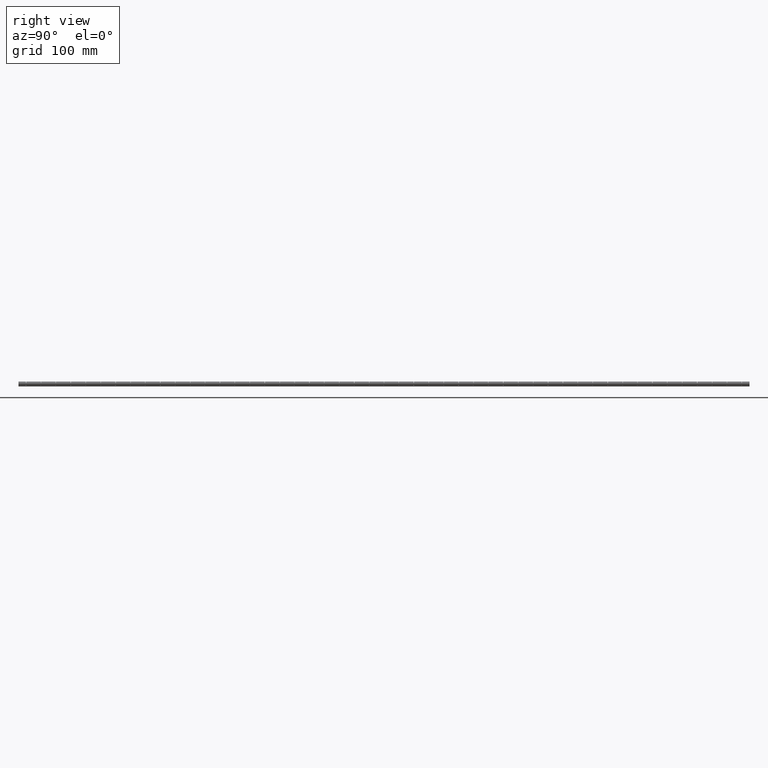
[diagram: clean part render]
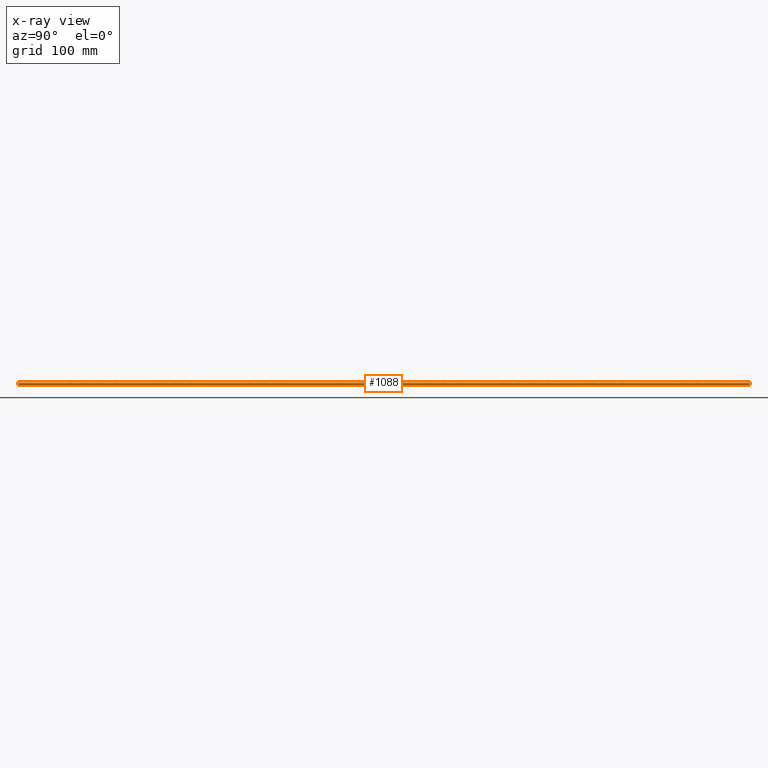
[diagram: x-ray — body ghosted, one internal face saturated and labeled with its STEP entity id]
A machine part, right view, then the same camera in x-ray: the body is ghosted and one INTERNAL B-rep face — a face not visible from any outside direction — is saturated and labeled: STEP entity #1088.
In plain terms, the highlighted cylindrical surface (edge-blend (fillet) strip) has radius 1.75 mm, axis along (0, -1, 0).
Its self-contained STEP definition (entity closure, byte-faithful):
#1016 = EDGE_CURVE ( 'NONE', #1090, #1017, #3806, .T. ) ;
#1017 = VERTEX_POINT ( 'NONE', #3802 ) ;
#1018 = ORIENTED_EDGE ( 'NONE', *, *, #1019, .T. ) ;
#1019 = EDGE_CURVE ( 'NONE', #1017, #1020, #3801, .T. ) ;
#1020 = VERTEX_POINT ( 'NONE', #3796 ) ;
#1021 = ORIENTED_EDGE ( 'NONE', *, *, #1073, .F. ) ;
#1073 = EDGE_CURVE ( 'NONE', #9745, #1020, #3856, .T. ) ;
#1088 = ADVANCED_FACE ( 'NONE', ( #3896 ), #3895, .T. ) ;
#1089 = EDGE_LOOP ( 'NONE', ( #1092, #10109, #1018, #1021 ) ) ;
#1090 = VERTEX_POINT ( 'NONE', #3890 ) ;
#1092 = ORIENTED_EDGE ( 'NONE', *, *, #1093, .F. ) ;
#1093 = EDGE_CURVE ( 'NONE', #1090, #9745, #3888, .T. ) ;
#3796 = CARTESIAN_POINT ( 'NONE',  ( 0.0000000000000000000, -500.0000000000000000, -1.749999999999999800 ) ) ;
#3797 = DIRECTION ( 'NONE',  ( 0.0000000000000000000, 0.0000000000000000000, 1.000000000000000000 ) ) ;
#3798 = DIRECTION ( 'NONE',  ( 0.0000000000000000000, 1.000000000000000000, 0.0000000000000000000 ) ) ;
#3799 = CARTESIAN_POINT ( 'NONE',  ( 0.0000000000000000000, -500.0000000000000000, 0.0000000000000000000 ) ) ;
#3800 = AXIS2_PLACEMENT_3D ( 'NONE', #3799, #3798, #3797 ) ;
#3801 = CIRCLE ( 'NONE', #3800, 1.749999999999999800 ) ;
#3802 = CARTESIAN_POINT ( 'NONE',  ( 2.143061119189160000E-016, -500.0000000000000000, 1.749999999999999800 ) ) ;
#3803 = DIRECTION ( 'NONE',  ( 0.0000000000000000000, -1.000000000000000000, 0.0000000000000000000 ) ) ;
#3804 = VECTOR ( 'NONE', #3803, 1000.000000000000000 ) ;
#3805 = CARTESIAN_POINT ( 'NONE',  ( 2.143061119189160000E-016, 500.0000000000000000, 1.749999999999999800 ) ) ;
#3806 = LINE ( 'NONE', #3805, #3804 ) ;
#3853 = DIRECTION ( 'NONE',  ( 0.0000000000000000000, -1.000000000000000000, 0.0000000000000000000 ) ) ;
#3854 = VECTOR ( 'NONE', #3853, 1000.000000000000000 ) ;
#3855 = CARTESIAN_POINT ( 'NONE',  ( 0.0000000000000000000, 500.0000000000000000, -1.749999999999999800 ) ) ;
#3856 = LINE ( 'NONE', #3855, #3854 ) ;
#3885 = DIRECTION ( 'NONE',  ( 0.0000000000000000000, 1.000000000000000000, 0.0000000000000000000 ) ) ;
#3886 = CARTESIAN_POINT ( 'NONE',  ( 0.0000000000000000000, 500.0000000000000000, 0.0000000000000000000 ) ) ;
#3887 = AXIS2_PLACEMENT_3D ( 'NONE', #3886, #3885, #3943 ) ;
#3888 = CIRCLE ( 'NONE', #3887, 1.749999999999999800 ) ;
#3890 = CARTESIAN_POINT ( 'NONE',  ( 2.143061119189160000E-016, 500.0000000000000000, 1.749999999999999800 ) ) ;
#3891 = DIRECTION ( 'NONE',  ( 0.0000000000000000000, 0.0000000000000000000, -1.000000000000000000 ) ) ;
#3892 = DIRECTION ( 'NONE',  ( 0.0000000000000000000, -1.000000000000000000, 0.0000000000000000000 ) ) ;
#3893 = CARTESIAN_POINT ( 'NONE',  ( 0.0000000000000000000, 500.0000000000000000, 0.0000000000000000000 ) ) ;
#3894 = AXIS2_PLACEMENT_3D ( 'NONE', #3893, #3892, #3891 ) ;
#3895 = CYLINDRICAL_SURFACE ( 'NONE', #3894, 1.749999999999999800 ) ;
#3896 = FACE_OUTER_BOUND ( 'NONE', #1089, .T. ) ;
#3943 = DIRECTION ( 'NONE',  ( 0.0000000000000000000, 0.0000000000000000000, 1.000000000000000000 ) ) ;
#6842 = CARTESIAN_POINT ( 'NONE',  ( 0.0000000000000000000, 500.0000000000000000, -1.749999999999999800 ) ) ;
#9745 = VERTEX_POINT ( 'NONE', #6842 ) ;
#10109 = ORIENTED_EDGE ( 'NONE', *, *, #1016, .T. ) ;